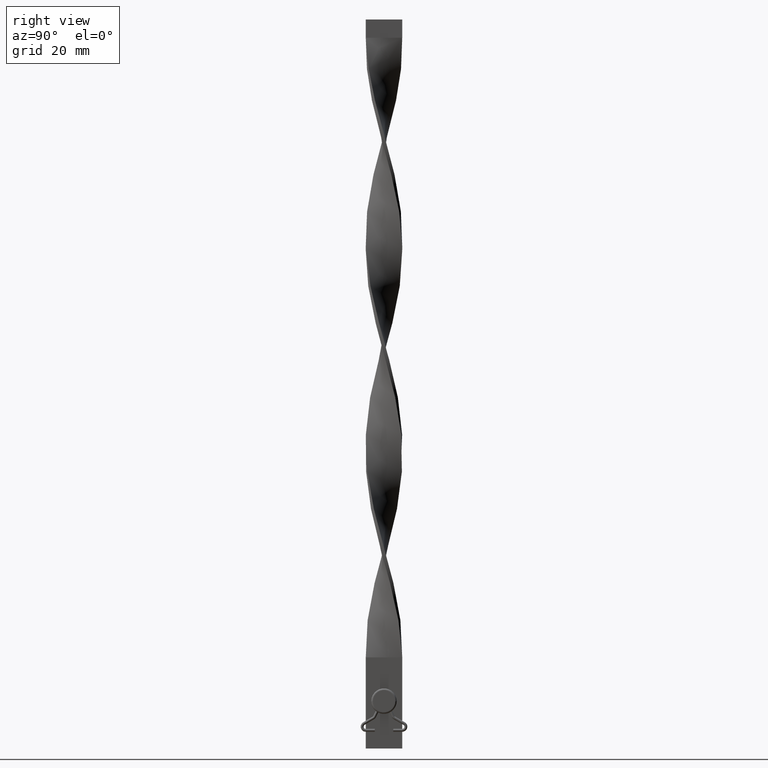
[diagram: clean part render]
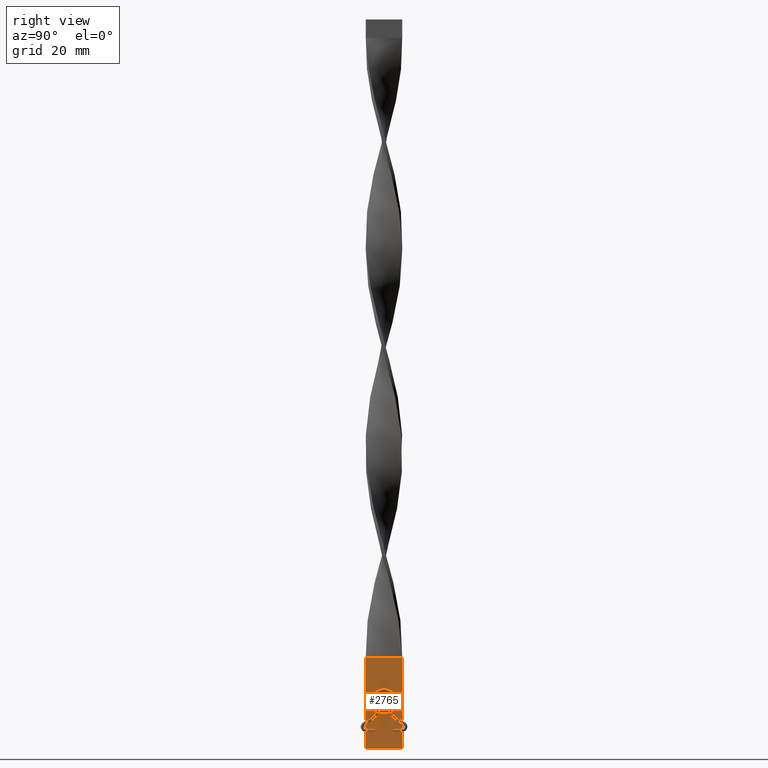
[diagram: same view with one face highlighted and labeled with its STEP entity id]
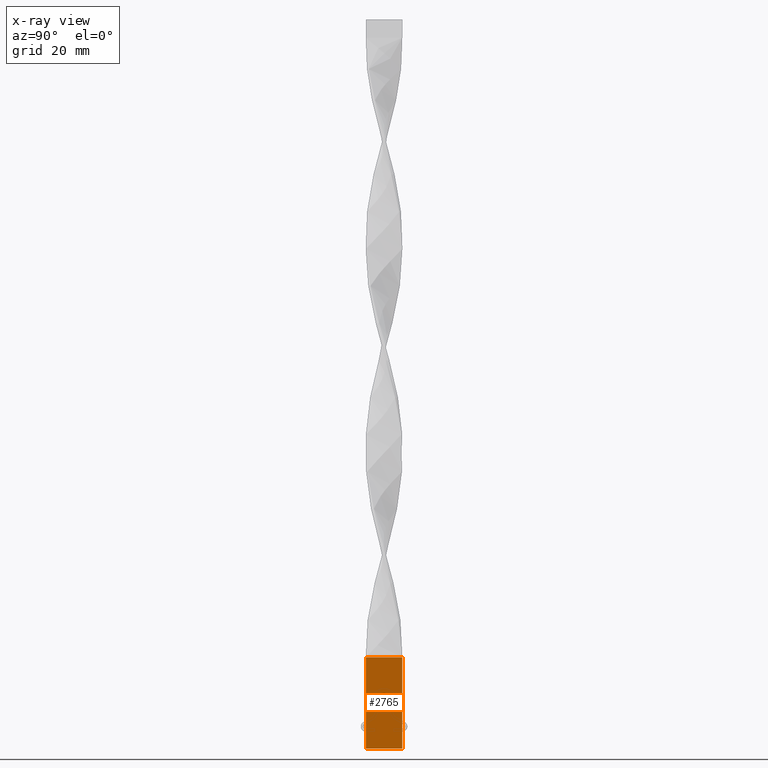
[diagram: x-ray of the same camera — body ghosted, the highlighted face saturated]
A machine part, right view. The second image highlights one B-rep face of the part: STEP entity #2765.
The next image is the same camera in x-ray: the body ghosted, the highlighted face saturated — about 0% of this face is hidden behind the body in this view.
In plain terms, the highlighted planar face has unit normal (1, 0, -0).
Its self-contained STEP definition (entity closure, byte-faithful):
#7 = VECTOR ( 'NONE', #923, 1000.000000000000000 ) ;
#31 = VERTEX_POINT ( 'NONE', #1310 ) ;
#86 = DIRECTION ( 'NONE',  ( -1.301042606982605321E-16, 1.000000000000000000, 0.000000000000000000 ) ) ;
#228 = VECTOR ( 'NONE', #3981, 1000.000000000000000 ) ;
#300 = CIRCLE ( 'NONE', #1921, 1.999999999999999556 ) ;
#345 = DIRECTION ( 'NONE',  ( -3.794707603699266505E-16, 1.000000000000000000, 0.000000000000000000 ) ) ;
#371 = LINE ( 'NONE', #1776, #228 ) ;
#448 = CARTESIAN_POINT ( 'NONE',  ( 0.5000000000000003331, 6.505213034913030302E-17, 13.00000000000000000 ) ) ;
#509 = CARTESIAN_POINT ( 'NONE',  ( 0.4999999999999995559, 1.999999999999999556, 13.00000000000000000 ) ) ;
#531 = VECTOR ( 'NONE', #622, 1000.000000000000000 ) ;
#569 = CARTESIAN_POINT ( 'NONE',  ( 0.5000000000000011102, -1.999999999999999556, 13.00000000000000000 ) ) ;
#597 = LINE ( 'NONE', #2061, #531 ) ;
#622 = DIRECTION ( 'NONE',  ( -0.000000000000000000, -0.000000000000000000, -1.000000000000000000 ) ) ;
#735 = ORIENTED_EDGE ( 'NONE', *, *, #1761, .F. ) ;
#774 = DIRECTION ( 'NONE',  ( 1.000000000000000000, 3.794707603699264533E-16, 0.000000000000000000 ) ) ;
#795 = ORIENTED_EDGE ( 'NONE', *, *, #1571, .F. ) ;
#923 = DIRECTION ( 'NONE',  ( 1.301042606982605321E-16, -1.000000000000000000, 0.000000000000000000 ) ) ;
#978 = EDGE_CURVE ( 'NONE', #1507, #4359, #1719, .T. ) ;
#1114 = CIRCLE ( 'NONE', #2378, 1.999999999999999556 ) ;
#1165 = CARTESIAN_POINT ( 'NONE',  ( 0.5000000000000003331, 6.505213034913030302E-17, 13.00000000000000000 ) ) ;
#1216 = DIRECTION ( 'NONE',  ( 1.000000000000000000, 3.794707603699264533E-16, 0.000000000000000000 ) ) ;
#1275 = CARTESIAN_POINT ( 'NONE',  ( 0.5000000000000009992, -5.000000000000004441, 0.000000000000000000 ) ) ;
#1290 = EDGE_LOOP ( 'NONE', ( #4092, #2501 ) ) ;
#1310 = CARTESIAN_POINT ( 'NONE',  ( 0.4999999999999996669, 4.999999999999995559, 25.00000000000000000 ) ) ;
#1361 = EDGE_CURVE ( 'NONE', #4183, #1404, #300, .T. ) ;
#1376 = CARTESIAN_POINT ( 'NONE',  ( 0.4999999999999996669, 4.999999999999995559, 0.000000000000000000 ) ) ;
#1404 = VERTEX_POINT ( 'NONE', #569 ) ;
#1460 = FACE_OUTER_BOUND ( 'NONE', #1529, .T. ) ;
#1486 = DIRECTION ( 'NONE',  ( 1.000000000000000000, 1.301042606982605321E-16, -0.000000000000000000 ) ) ;
#1495 = LINE ( 'NONE', #2683, #7 ) ;
#1507 = VERTEX_POINT ( 'NONE', #2101 ) ;
#1509 = FACE_BOUND ( 'NONE', #1290, .T. ) ;
#1529 = EDGE_LOOP ( 'NONE', ( #795, #735, #3390, #2187 ) ) ;
#1571 = EDGE_CURVE ( 'NONE', #1595, #4359, #371, .T. ) ;
#1595 = VERTEX_POINT ( 'NONE', #1376 ) ;
#1719 = LINE ( 'NONE', #4195, #3038 ) ;
#1761 = EDGE_CURVE ( 'NONE', #31, #1595, #597, .T. ) ;
#1776 = CARTESIAN_POINT ( 'NONE',  ( 0.4999999999999996669, 4.999999999999995559, 0.000000000000000000 ) ) ;
#1921 = AXIS2_PLACEMENT_3D ( 'NONE', #1165, #1216, #345 ) ;
#2061 = CARTESIAN_POINT ( 'NONE',  ( 0.4999999999999996669, 4.999999999999995559, 25.00000000000000000 ) ) ;
#2101 = CARTESIAN_POINT ( 'NONE',  ( 0.5000000000000009992, -5.000000000000004441, 25.00000000000000000 ) ) ;
#2187 = ORIENTED_EDGE ( 'NONE', *, *, #978, .T. ) ;
#2226 = AXIS2_PLACEMENT_3D ( 'NONE', #3670, #1486, #86 ) ;
#2255 = EDGE_CURVE ( 'NONE', #31, #1507, #1495, .T. ) ;
#2378 = AXIS2_PLACEMENT_3D ( 'NONE', #448, #774, #4004 ) ;
#2501 = ORIENTED_EDGE ( 'NONE', *, *, #1361, .F. ) ;
#2683 = CARTESIAN_POINT ( 'NONE',  ( 0.4999999999999996669, 4.999999999999995559, 25.00000000000000000 ) ) ;
#2765 = ADVANCED_FACE ( 'NONE', ( #1509, #1460 ), #4344, .T. ) ;
#3038 = VECTOR ( 'NONE', #4552, 1000.000000000000000 ) ;
#3154 = EDGE_CURVE ( 'NONE', #1404, #4183, #1114, .T. ) ;
#3390 = ORIENTED_EDGE ( 'NONE', *, *, #2255, .T. ) ;
#3670 = CARTESIAN_POINT ( 'NONE',  ( 0.4999999999999996669, 4.999999999999995559, 25.00000000000000000 ) ) ;
#3981 = DIRECTION ( 'NONE',  ( 1.301042606982605321E-16, -1.000000000000000000, 0.000000000000000000 ) ) ;
#4004 = DIRECTION ( 'NONE',  ( -3.794707603699266505E-16, 1.000000000000000000, 0.000000000000000000 ) ) ;
#4092 = ORIENTED_EDGE ( 'NONE', *, *, #3154, .F. ) ;
#4183 = VERTEX_POINT ( 'NONE', #509 ) ;
#4195 = CARTESIAN_POINT ( 'NONE',  ( 0.5000000000000009992, -5.000000000000004441, 25.00000000000000000 ) ) ;
#4344 = PLANE ( 'NONE',  #2226 ) ;
#4359 = VERTEX_POINT ( 'NONE', #1275 ) ;
#4552 = DIRECTION ( 'NONE',  ( -0.000000000000000000, -0.000000000000000000, -1.000000000000000000 ) ) ;